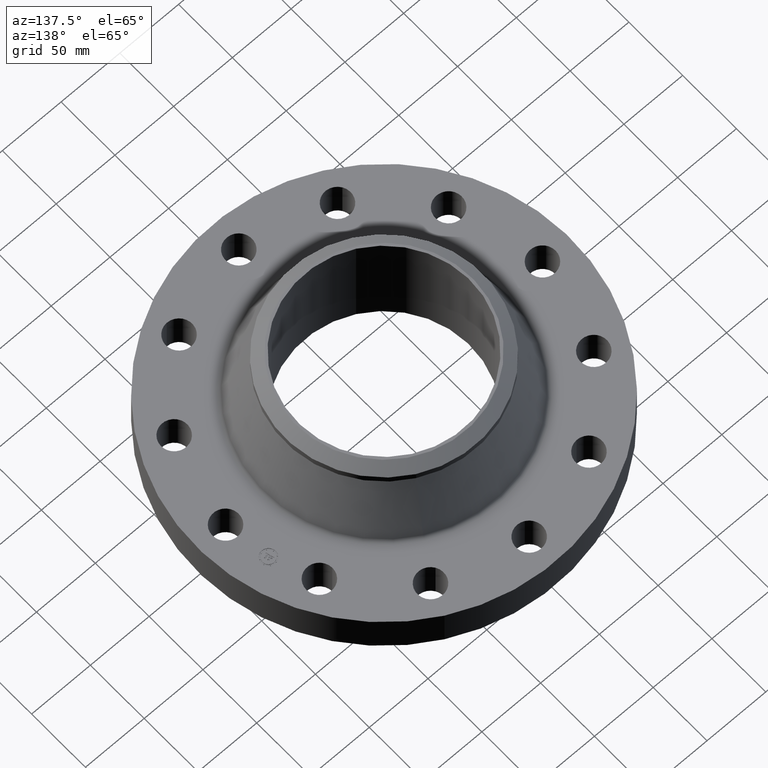
[diagram: clean part render]
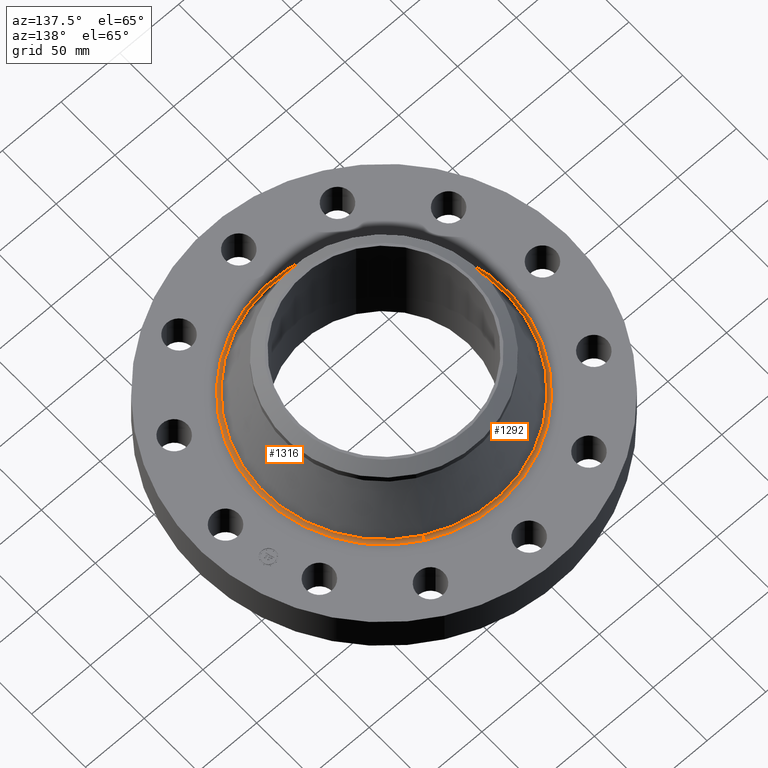
[diagram: same view with one multi-face feature highlighted, each face labeled with its STEP entity id]
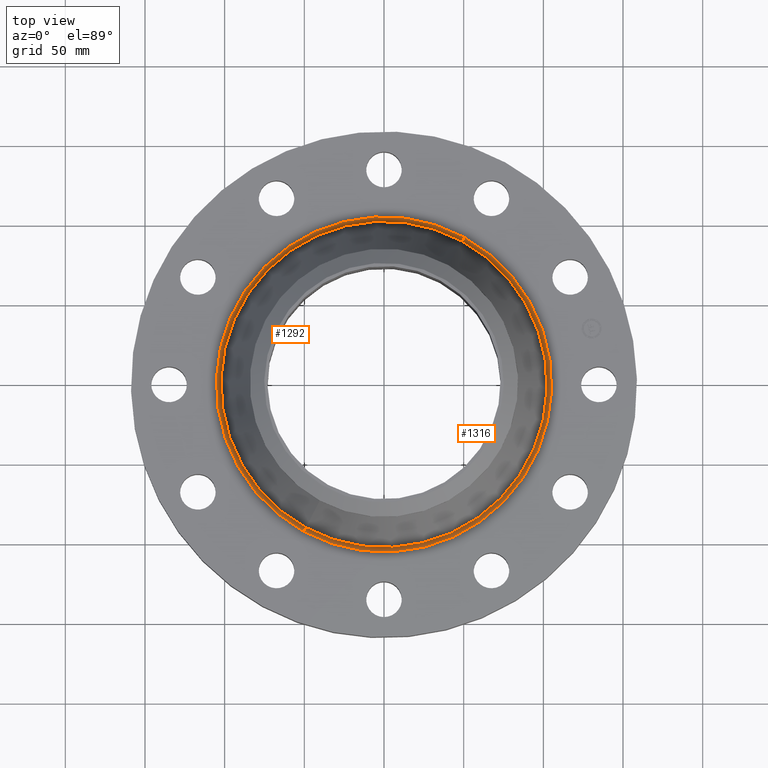
[diagram: same view with one multi-face feature highlighted, each face labeled with its STEP entity id]
A machine part, auxiliary view. The highlighted faces form ONE feature: a constant-radius fillet chain: 2 tangent blend faces with common blend radius 3.048 mm. The faces share edges in the B-rep.
A second angle (top view) of the same feature is appended — it is thin or edge-on in the first view.
Their STEP definitions:
[1] entity #1292 (Torus):
#416=AXIS2_PLACEMENT_3D('Circle Axis2P3D',#414,#415,$) ;
#1265=AXIS2_PLACEMENT_3D('Torus Axis2P3D',#1262,#1263,#1264) ;
#1269=AXIS2_PLACEMENT_3D('Circle Axis2P3D',#1267,#1268,$) ;
#1276=AXIS2_PLACEMENT_3D('Circle Axis2P3D',#1274,#1275,$) ;
#1283=AXIS2_PLACEMENT_3D('Circle Axis2P3D',#1281,#1282,$) ;
#414=CARTESIAN_POINT('Axis2P3D Location',(0.,2.00003793055E-011,1.38000000001)) ;
#418=CARTESIAN_POINT('Vertex',(-1.98593442529,-3.63522858162,1.38000000001)) ;
#420=CARTESIAN_POINT('Vertex',(1.98593442529,3.63522858162,1.38000000001)) ;
#1262=CARTESIAN_POINT('Axis2P3D Location',(0.,0.,1.50000000001)) ;
#1267=CARTESIAN_POINT('Axis2P3D Location',(-1.98593442529,-3.63522858162,1.50000000001)) ;
#1271=CARTESIAN_POINT('Vertex',(-1.93226031699,-3.53697878539,1.45680199496)) ;
#1274=CARTESIAN_POINT('Axis2P3D Location',(0.,0.,1.45680199496)) ;
#1278=CARTESIAN_POINT('Vertex',(1.93226031699,3.53697878539,1.45680199496)) ;
#1281=CARTESIAN_POINT('Axis2P3D Location',(1.98593442529,3.63522858162,1.50000000001)) ;
#415=DIRECTION('Axis2P3D Direction',(0.,0.,-0.0393700787402)) ;
#1263=DIRECTION('Axis2P3D Direction',(0.,0.,-0.0393700787402)) ;
#1264=DIRECTION('Axis2P3D XDirection',(-0.0188750212049,-0.0345504945626,0.)) ;
#1268=DIRECTION('Axis2P3D Direction',(0.0345504945626,-0.0188750212049,0.)) ;
#1275=DIRECTION('Axis2P3D Direction',(-0.,0.,-0.0393700787402)) ;
#1282=DIRECTION('Axis2P3D Direction',(-0.0345504945626,0.0188750212049,0.)) ;
#1287=ORIENTED_EDGE('',*,*,#422,.F.) ;
#1288=ORIENTED_EDGE('',*,*,#1273,.T.) ;
#1289=ORIENTED_EDGE('',*,*,#1280,.T.) ;
#1290=ORIENTED_EDGE('',*,*,#1285,.F.) ;
#1292=ADVANCED_FACE('PartBody',(#1291),#1266,.F.) ;
#417=CIRCLE('generated circle',#416,4.14232089317) ;
#1270=CIRCLE('generated circle',#1269,0.12) ;
#1277=CIRCLE('generated circle',#1276,4.03036584703) ;
#1284=CIRCLE('generated circle',#1283,0.12) ;
#1266=TOROIDAL_SURFACE('homeo Torus',#1265,4.14232089319,0.12) ;
#422=EDGE_CURVE('',#419,#421,#417,.T.) ;
#1273=EDGE_CURVE('',#419,#1272,#1270,.T.) ;
#1280=EDGE_CURVE('',#1272,#1279,#1277,.T.) ;
#1285=EDGE_CURVE('',#421,#1279,#1284,.T.) ;
#1286=EDGE_LOOP('',(#1287,#1288,#1289,#1290)) ;
#1291=FACE_OUTER_BOUND('',#1286,.T.) ;
#419=VERTEX_POINT('',#418) ;
#421=VERTEX_POINT('',#420) ;
#1272=VERTEX_POINT('',#1271) ;
#1279=VERTEX_POINT('',#1278) ;
[2] entity #1316 (Torus):
#425=AXIS2_PLACEMENT_3D('Circle Axis2P3D',#423,#424,$) ;
#1269=AXIS2_PLACEMENT_3D('Circle Axis2P3D',#1267,#1268,$) ;
#1283=AXIS2_PLACEMENT_3D('Circle Axis2P3D',#1281,#1282,$) ;
#1303=AXIS2_PLACEMENT_3D('Torus Axis2P3D',#1300,#1301,#1302) ;
#1307=AXIS2_PLACEMENT_3D('Circle Axis2P3D',#1305,#1306,$) ;
#418=CARTESIAN_POINT('Vertex',(-1.98593442529,-3.63522858162,1.38000000001)) ;
#420=CARTESIAN_POINT('Vertex',(1.98593442529,3.63522858162,1.38000000001)) ;
#423=CARTESIAN_POINT('Axis2P3D Location',(3.08537797236E-011,3.14541044129E-012,1.38000000001)) ;
#1267=CARTESIAN_POINT('Axis2P3D Location',(-1.98593442529,-3.63522858162,1.50000000001)) ;
#1271=CARTESIAN_POINT('Vertex',(-1.93226031699,-3.53697878539,1.45680199496)) ;
#1278=CARTESIAN_POINT('Vertex',(1.93226031699,3.53697878539,1.45680199496)) ;
#1281=CARTESIAN_POINT('Axis2P3D Location',(1.98593442529,3.63522858162,1.50000000001)) ;
#1300=CARTESIAN_POINT('Axis2P3D Location',(0.,0.,1.50000000001)) ;
#1305=CARTESIAN_POINT('Axis2P3D Location',(0.,0.,1.45680199496)) ;
#424=DIRECTION('Axis2P3D Direction',(0.,0.,-0.0393700787402)) ;
#1268=DIRECTION('Axis2P3D Direction',(0.0345504945626,-0.0188750212049,0.)) ;
#1282=DIRECTION('Axis2P3D Direction',(-0.0345504945626,0.0188750212049,0.)) ;
#1301=DIRECTION('Axis2P3D Direction',(0.,0.,-0.0393700787402)) ;
#1302=DIRECTION('Axis2P3D XDirection',(0.0188750212049,0.0345504945626,0.)) ;
#1306=DIRECTION('Axis2P3D Direction',(-0.,0.,-0.0393700787402)) ;
#1311=ORIENTED_EDGE('',*,*,#427,.F.) ;
#1312=ORIENTED_EDGE('',*,*,#1285,.T.) ;
#1313=ORIENTED_EDGE('',*,*,#1309,.T.) ;
#1314=ORIENTED_EDGE('',*,*,#1273,.F.) ;
#1316=ADVANCED_FACE('PartBody',(#1315),#1304,.F.) ;
#426=CIRCLE('generated circle',#425,4.14232089317) ;
#1270=CIRCLE('generated circle',#1269,0.12) ;
#1284=CIRCLE('generated circle',#1283,0.12) ;
#1308=CIRCLE('generated circle',#1307,4.03036584703) ;
#1304=TOROIDAL_SURFACE('homeo Torus',#1303,4.14232089319,0.12) ;
#427=EDGE_CURVE('',#421,#419,#426,.T.) ;
#1273=EDGE_CURVE('',#419,#1272,#1270,.T.) ;
#1285=EDGE_CURVE('',#421,#1279,#1284,.T.) ;
#1309=EDGE_CURVE('',#1279,#1272,#1308,.T.) ;
#1310=EDGE_LOOP('',(#1311,#1312,#1313,#1314)) ;
#1315=FACE_OUTER_BOUND('',#1310,.T.) ;
#419=VERTEX_POINT('',#418) ;
#421=VERTEX_POINT('',#420) ;
#1272=VERTEX_POINT('',#1271) ;
#1279=VERTEX_POINT('',#1278) ;